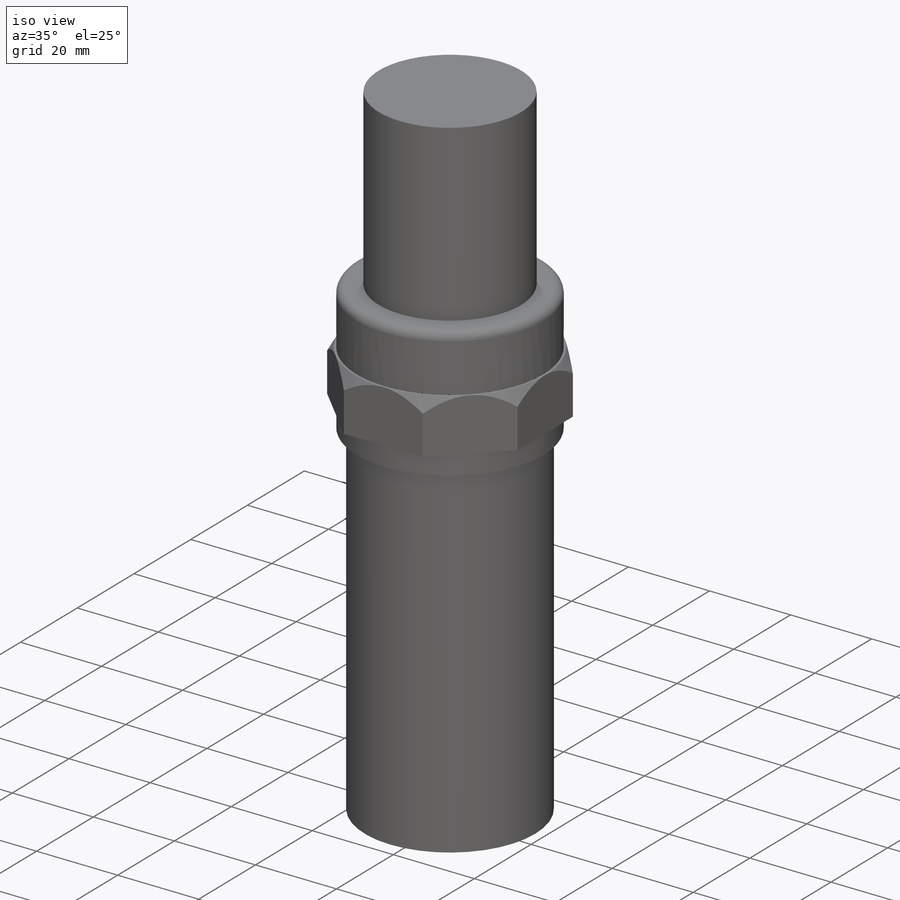
[diagram: iso view]
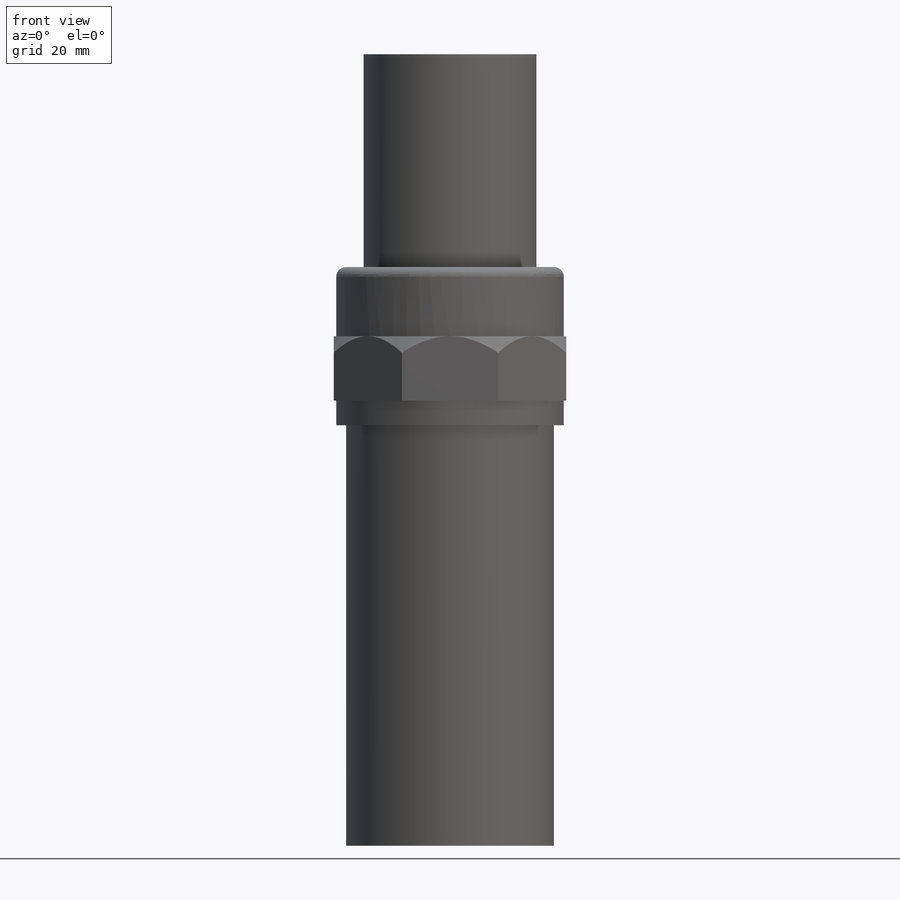
[diagram: front view]
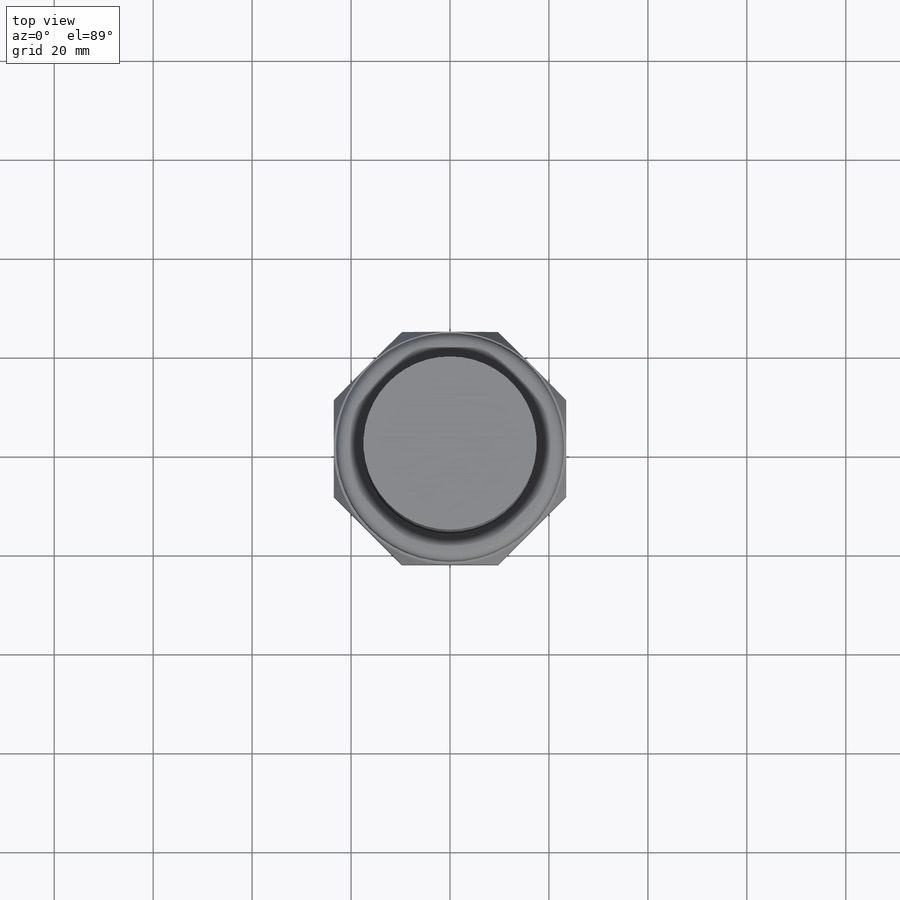
[diagram: top view]
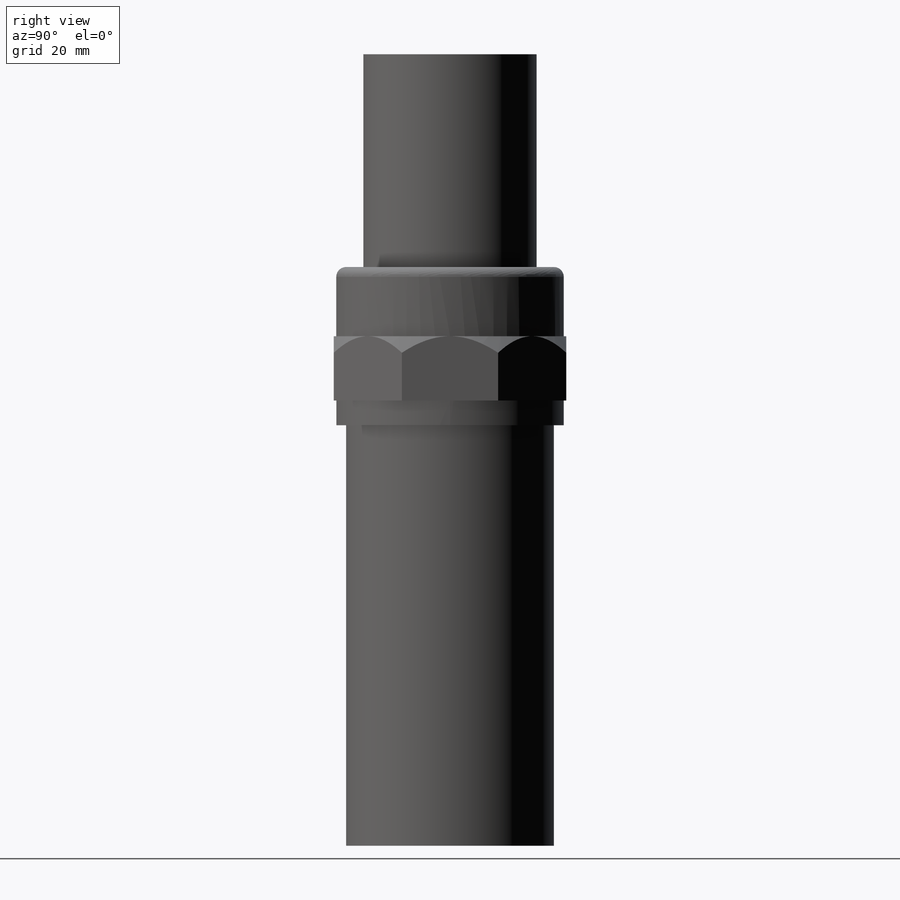
[diagram: right view]
SOLIDWORKS PART (.sldprt)
format: sldprt  version: not decoded by parser v0  size: 316,928 bytes
history: native  units: mm
features: sketch x11, extrude x5, material x1, sweep x1, fillet x1, revolve x1 (+13 scaffold rows collapsed)
feature tree (33):
  scaffold x13  (default folders/planes/origin — collapsed)
  material  "Material <not specified>"
  sketch  "Sketch1"  dims[c1.D1=40.0mm c2.D1=85.0mm c2.D5=1.0mm c2.D6=1.0mm c2.D7=5.0mm]
  sketch  "Sketch2"  dims[c1.D1=43.0mm c2.D1=5.0mm c2.D5=2.0mm c2.D6=1.0mm c2.D7=5.0mm]
  sketch  "Sketch3"  dims[D1=47.0mm D2=55.0mm]
  extrude  "Extrude1"  Depth=13mm
  sketch  "Sketch5"  dims[c1.D1=~5.81847mm c2.D1=45.0deg c2.D2=7.0mm c3.D1=~6.983288mm c4.D1=60.0deg c4.D2=5.0mm]
  sketch  "Sketch6"
  sweep  "Cut-Sweep2"
  sketch  "Sketch7"
  extrude  "Extrude3"  Depth=14mm
  sketch  "Sketch11"  dims[D1=4.0mm]
  extrude  "Extrude5"  Depth=30mm
  sketch  "Sketch12"  dims[D1=25.0mm]
  extrude  "Extrude6"  Depth=3mm
  sketch  "Sketch9"  dims[D1=35.0mm]
  extrude  "Extrude4"  Depth=43mm
  fillet  "Fillet1"  Radius=2mm
  sketch  "Sketch10"  dims[D1=~22.084625mm]
  revolve  "485"  Angle=360deg
  sketch  "Cutting Hole"  dims[D1=40.0mm]
decode coverage: 16 of 19 modeling features carry decoded parameters
note: ~ marks probable driven/reference dimensions
note: suppression state not decoded; provenance and decode notes live in map.json
